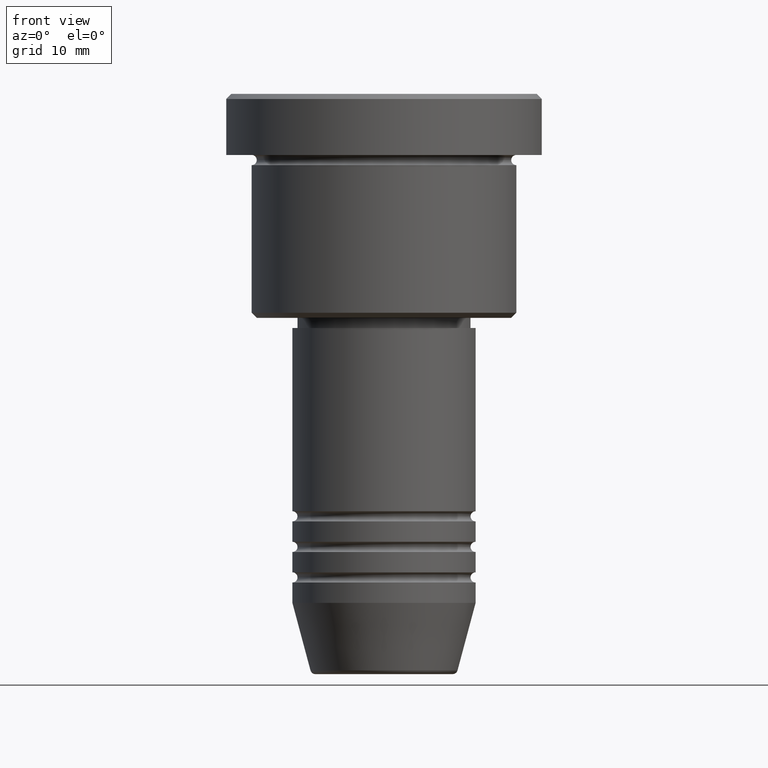
[diagram: clean part render]
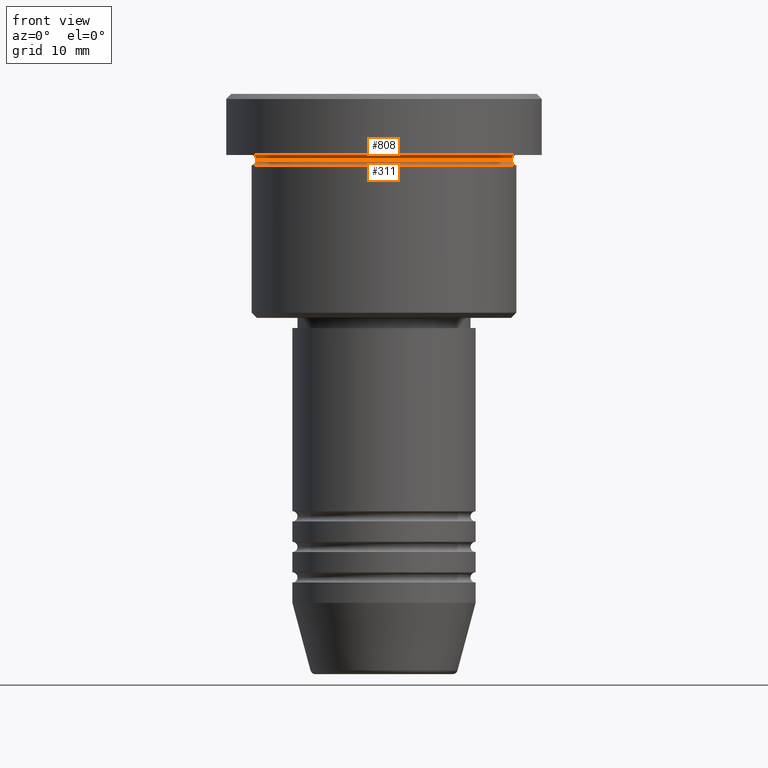
[diagram: same view with one multi-face feature highlighted, each face labeled with its STEP entity id]
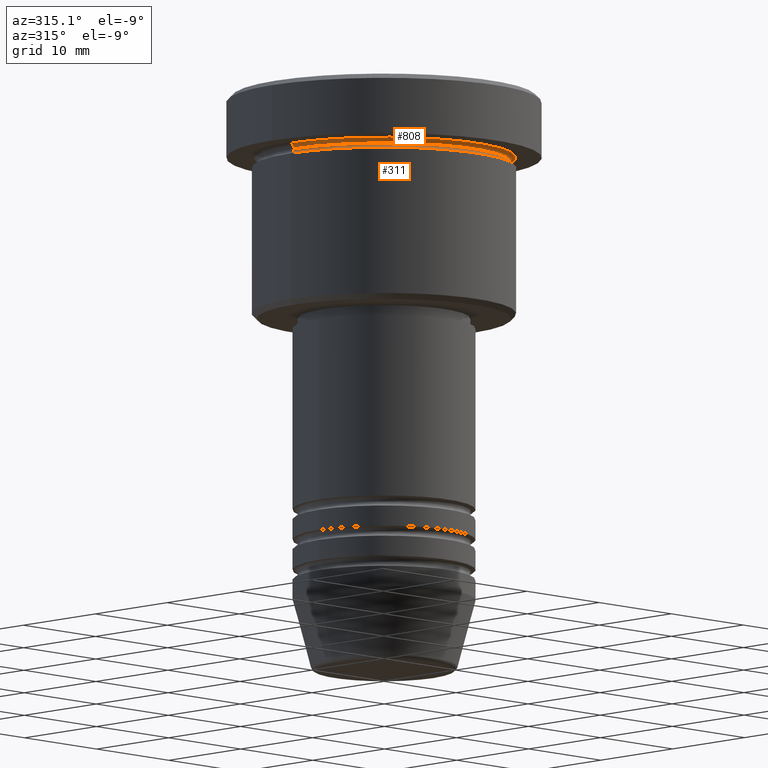
[diagram: same view with one multi-face feature highlighted, each face labeled with its STEP entity id]
A machine part, front view. The highlighted faces form ONE feature: a constant-radius fillet chain: 2 tangent blend faces with common blend radius 0.5 mm. The faces share edges in the B-rep.
A second angle (auxiliary view) of the same feature is appended — it is thin or edge-on in the first view.
Their STEP definitions:
[1] entity #808 (Torus):
#33 = EDGE_CURVE ( 'NONE', #779, #184, #267, .T. ) ;
#88 = ORIENTED_EDGE ( 'NONE', *, *, #33, .F. ) ;
#89 = DIRECTION ( 'NONE',  ( -1.000000000000000000, 0.000000000000000000, 0.000000000000000000 ) ) ;
#111 = EDGE_LOOP ( 'NONE', ( #1089, #390, #88, #292 ) ) ;
#139 = AXIS2_PLACEMENT_3D ( 'NONE', #525, #520, #1071 ) ;
#173 = DIRECTION ( 'NONE',  ( 0.000000000000000000, 0.000000000000000000, -1.000000000000000000 ) ) ;
#184 = VERTEX_POINT ( 'NONE', #949 ) ;
#188 = DIRECTION ( 'NONE',  ( -1.224646799147353207E-16, 1.000000000000000000, 0.000000000000000000 ) ) ;
#214 = DIRECTION ( 'NONE',  ( 1.000000000000000000, 0.000000000000000000, 0.000000000000000000 ) ) ;
#248 = CIRCLE ( 'NONE', #139, 0.5000000000000004441 ) ;
#261 = CARTESIAN_POINT ( 'NONE',  ( 12.49999999999999822, 0.000000000000000000, -6.499999999999995559 ) ) ;
#267 = CIRCLE ( 'NONE', #1014, 13.00000000000000000 ) ;
#272 = AXIS2_PLACEMENT_3D ( 'NONE', #1007, #188, #379 ) ;
#292 = ORIENTED_EDGE ( 'NONE', *, *, #376, .F. ) ;
#301 = CARTESIAN_POINT ( 'NONE',  ( 0.000000000000000000, 0.000000000000000000, -6.499999999999995559 ) ) ;
#320 = VERTEX_POINT ( 'NONE', #261 ) ;
#376 = EDGE_CURVE ( 'NONE', #1079, #779, #248, .T. ) ;
#379 = DIRECTION ( 'NONE',  ( -1.000000000000000000, -1.224646799147353454E-16, 0.000000000000000000 ) ) ;
#390 = ORIENTED_EDGE ( 'NONE', *, *, #571, .T. ) ;
#410 = CARTESIAN_POINT ( 'NONE',  ( -12.49999999999999822, 1.561424668912875308E-15, -6.499999999999995559 ) ) ;
#520 = DIRECTION ( 'NONE',  ( -0.000000000000000000, -1.000000000000000000, -0.000000000000000000 ) ) ;
#525 = CARTESIAN_POINT ( 'NONE',  ( -13.00000000000000000, 0.000000000000000000, -6.499999999999995559 ) ) ;
#571 = EDGE_CURVE ( 'NONE', #320, #184, #907, .T. ) ;
#596 = AXIS2_PLACEMENT_3D ( 'NONE', #301, #667, #214 ) ;
#619 = CARTESIAN_POINT ( 'NONE',  ( -13.00000000000000000, 0.000000000000000000, -5.999999999999994671 ) ) ;
#667 = DIRECTION ( 'NONE',  ( -0.000000000000000000, -0.000000000000000000, 1.000000000000000000 ) ) ;
#685 = AXIS2_PLACEMENT_3D ( 'NONE', #1177, #173, #89 ) ;
#752 = TOROIDAL_SURFACE ( 'NONE', #685, 13.00000000000000000, 0.5000000000000000000 ) ;
#779 = VERTEX_POINT ( 'NONE', #619 ) ;
#787 = CIRCLE ( 'NONE', #596, 12.49999999999999822 ) ;
#808 = ADVANCED_FACE ( 'NONE', ( #992 ), #752, .F. ) ;
#907 = CIRCLE ( 'NONE', #272, 0.5000000000000004441 ) ;
#945 = DIRECTION ( 'NONE',  ( -0.000000000000000000, -0.000000000000000000, 1.000000000000000000 ) ) ;
#949 = CARTESIAN_POINT ( 'NONE',  ( 13.00000000000000000, 1.592040838891559095E-15, -5.999999999999994671 ) ) ;
#992 = FACE_OUTER_BOUND ( 'NONE', #111, .T. ) ;
#1007 = CARTESIAN_POINT ( 'NONE',  ( 13.00000000000000000, 1.592040838891559095E-15, -6.499999999999995559 ) ) ;
#1014 = AXIS2_PLACEMENT_3D ( 'NONE', #1106, #945, #1120 ) ;
#1071 = DIRECTION ( 'NONE',  ( 0.000000000000000000, 0.000000000000000000, -1.000000000000000000 ) ) ;
#1079 = VERTEX_POINT ( 'NONE', #410 ) ;
#1089 = ORIENTED_EDGE ( 'NONE', *, *, #1140, .T. ) ;
#1106 = CARTESIAN_POINT ( 'NONE',  ( 0.000000000000000000, 0.000000000000000000, -5.999999999999995559 ) ) ;
#1120 = DIRECTION ( 'NONE',  ( -1.000000000000000000, 0.000000000000000000, 0.000000000000000000 ) ) ;
#1140 = EDGE_CURVE ( 'NONE', #1079, #320, #787, .T. ) ;
#1177 = CARTESIAN_POINT ( 'NONE',  ( 0.000000000000000000, 0.000000000000000000, -6.499999999999995559 ) ) ;
[2] entity #311 (Torus):
#5 = FACE_OUTER_BOUND ( 'NONE', #823, .T. ) ;
#18 = CARTESIAN_POINT ( 'NONE',  ( 0.000000000000000000, 0.000000000000000000, -6.999999999999995559 ) ) ;
#65 = EDGE_CURVE ( 'NONE', #1004, #875, #323, .T. ) ;
#99 = CARTESIAN_POINT ( 'NONE',  ( -13.00000000000000000, 1.592040838891559095E-15, -6.999999999999995559 ) ) ;
#174 = CARTESIAN_POINT ( 'NONE',  ( 0.000000000000000000, 0.000000000000000000, -6.499999999999995559 ) ) ;
#181 = ORIENTED_EDGE ( 'NONE', *, *, #1140, .F. ) ;
#194 = DIRECTION ( 'NONE',  ( 1.000000000000000000, 0.000000000000000000, 0.000000000000000000 ) ) ;
#214 = DIRECTION ( 'NONE',  ( 1.000000000000000000, 0.000000000000000000, 0.000000000000000000 ) ) ;
#261 = CARTESIAN_POINT ( 'NONE',  ( 12.49999999999999822, 0.000000000000000000, -6.499999999999995559 ) ) ;
#301 = CARTESIAN_POINT ( 'NONE',  ( 0.000000000000000000, 0.000000000000000000, -6.499999999999995559 ) ) ;
#311 = ADVANCED_FACE ( 'NONE', ( #5 ), #1171, .F. ) ;
#320 = VERTEX_POINT ( 'NONE', #261 ) ;
#323 = CIRCLE ( 'NONE', #478, 13.00000000000000000 ) ;
#366 = EDGE_CURVE ( 'NONE', #1079, #1004, #906, .T. ) ;
#410 = CARTESIAN_POINT ( 'NONE',  ( -12.49999999999999822, 1.561424668912875308E-15, -6.499999999999995559 ) ) ;
#430 = DIRECTION ( 'NONE',  ( 1.000000000000000000, 0.000000000000000000, 0.000000000000000000 ) ) ;
#434 = DIRECTION ( 'NONE',  ( -0.000000000000000000, -0.000000000000000000, 1.000000000000000000 ) ) ;
#455 = ORIENTED_EDGE ( 'NONE', *, *, #366, .T. ) ;
#478 = AXIS2_PLACEMENT_3D ( 'NONE', #18, #834, #194 ) ;
#513 = ORIENTED_EDGE ( 'NONE', *, *, #677, .F. ) ;
#558 = AXIS2_PLACEMENT_3D ( 'NONE', #174, #434, #430 ) ;
#581 = CIRCLE ( 'NONE', #1117, 0.5000000000000004441 ) ;
#588 = CARTESIAN_POINT ( 'NONE',  ( 13.00000000000000000, 0.000000000000000000, -6.499999999999995559 ) ) ;
#596 = AXIS2_PLACEMENT_3D ( 'NONE', #301, #667, #214 ) ;
#667 = DIRECTION ( 'NONE',  ( -0.000000000000000000, -0.000000000000000000, 1.000000000000000000 ) ) ;
#668 = DIRECTION ( 'NONE',  ( 0.000000000000000000, -1.000000000000000000, 0.000000000000000000 ) ) ;
#677 = EDGE_CURVE ( 'NONE', #320, #875, #581, .T. ) ;
#768 = AXIS2_PLACEMENT_3D ( 'NONE', #1163, #1169, #1178 ) ;
#787 = CIRCLE ( 'NONE', #596, 12.49999999999999822 ) ;
#823 = EDGE_LOOP ( 'NONE', ( #181, #455, #939, #513 ) ) ;
#834 = DIRECTION ( 'NONE',  ( -0.000000000000000000, -0.000000000000000000, 1.000000000000000000 ) ) ;
#875 = VERTEX_POINT ( 'NONE', #982 ) ;
#906 = CIRCLE ( 'NONE', #768, 0.5000000000000004441 ) ;
#939 = ORIENTED_EDGE ( 'NONE', *, *, #65, .T. ) ;
#955 = DIRECTION ( 'NONE',  ( 0.000000000000000000, 0.000000000000000000, -1.000000000000000000 ) ) ;
#982 = CARTESIAN_POINT ( 'NONE',  ( 13.00000000000000000, 0.000000000000000000, -6.999999999999995559 ) ) ;
#1004 = VERTEX_POINT ( 'NONE', #99 ) ;
#1079 = VERTEX_POINT ( 'NONE', #410 ) ;
#1117 = AXIS2_PLACEMENT_3D ( 'NONE', #588, #668, #955 ) ;
#1140 = EDGE_CURVE ( 'NONE', #1079, #320, #787, .T. ) ;
#1163 = CARTESIAN_POINT ( 'NONE',  ( -13.00000000000000000, 1.592040838891559095E-15, -6.499999999999995559 ) ) ;
#1169 = DIRECTION ( 'NONE',  ( 1.224646799147353207E-16, 1.000000000000000000, 0.000000000000000000 ) ) ;
#1171 = TOROIDAL_SURFACE ( 'NONE', #558, 13.00000000000000000, 0.5000000000000000000 ) ;
#1178 = DIRECTION ( 'NONE',  ( -1.000000000000000000, 1.224646799147353454E-16, 0.000000000000000000 ) ) ;